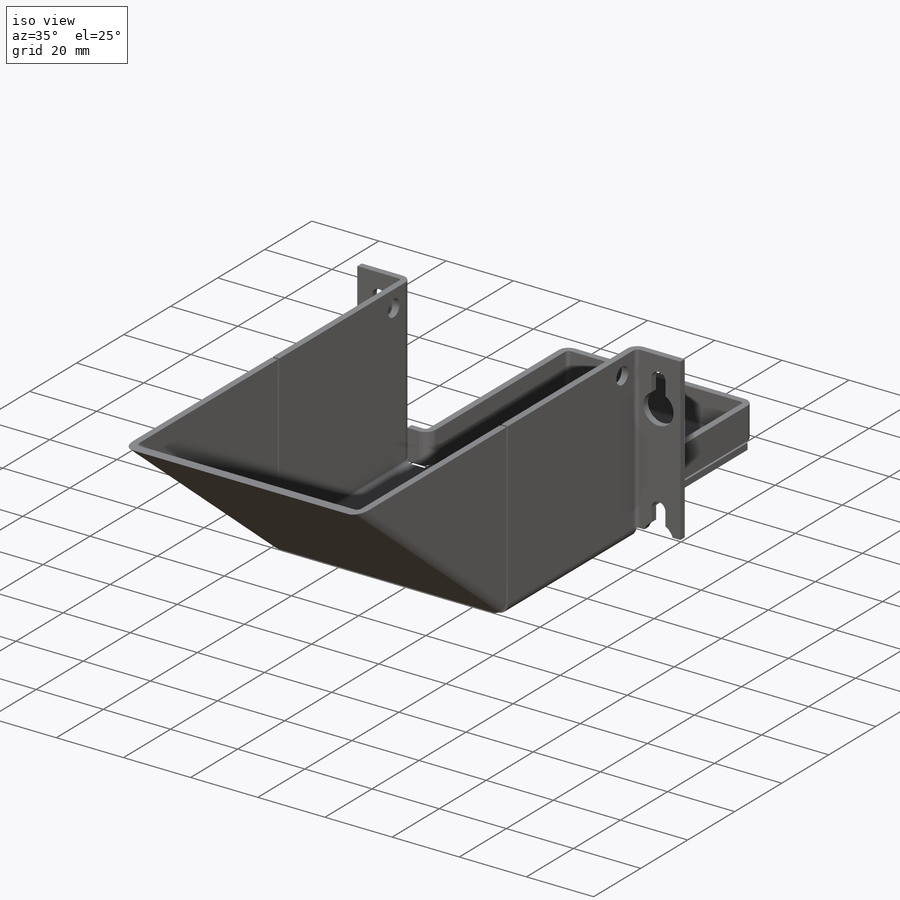
[diagram: iso view]
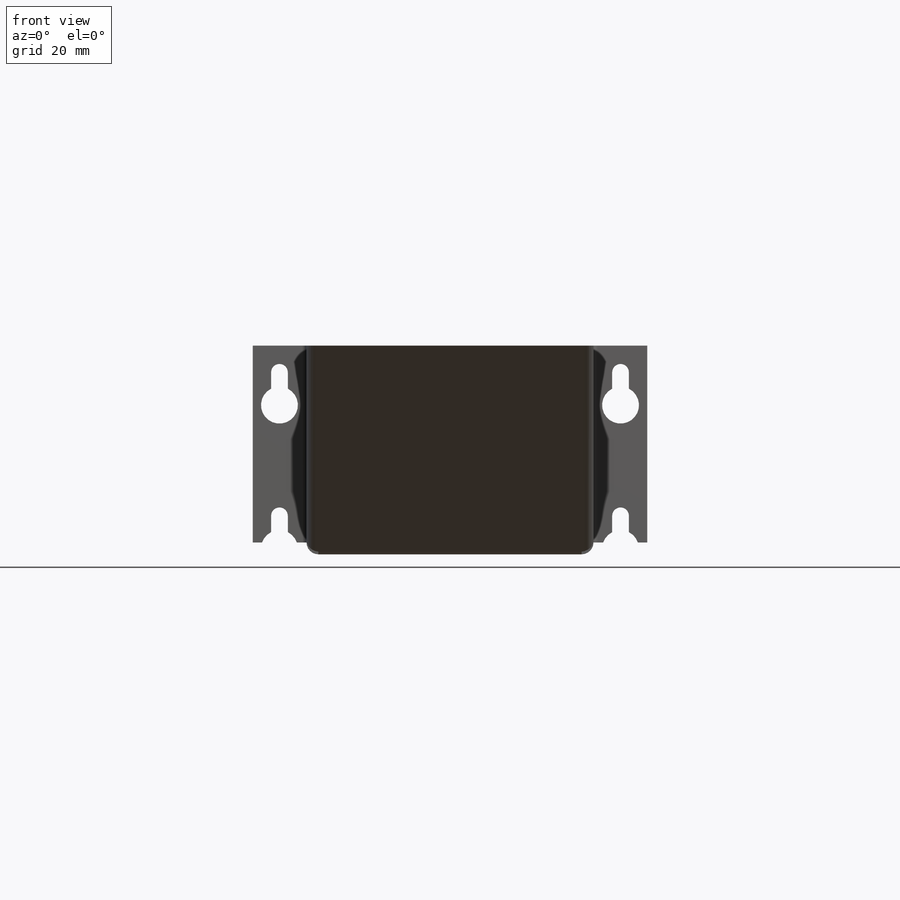
[diagram: front view]
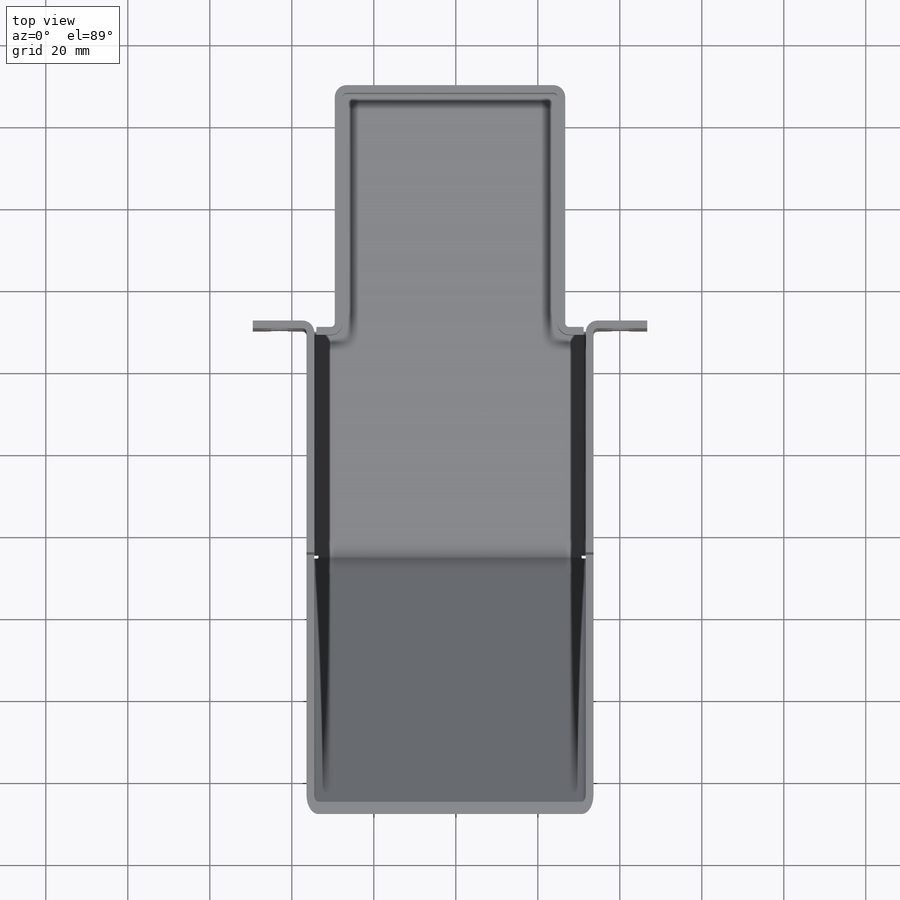
[diagram: top view]
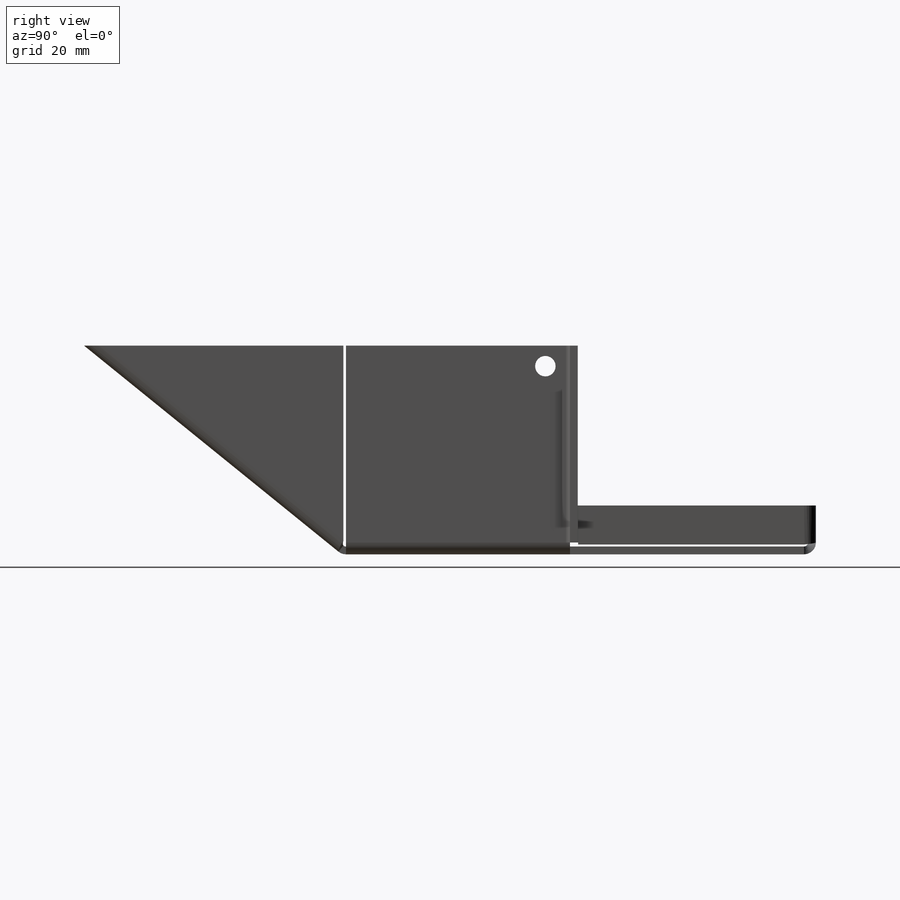
[diagram: right view]
SOLIDWORKS PART (.sldprt)
format: sldprt  version: not decoded by parser v0  size: 1,022,464 bytes
history: native  units: mm
features: sketch x47, sheet_metal_op x26, cut_extrude x4, material x1 + 14 further entries (+13 scaffold rows collapsed; 14 parser-record rows omitted)
feature tree (119):
  scaffold x13  (default folders/planes/origin — collapsed)
  material  "Material <not specified>"
  sketch  "Sketch1"  dims[c1.D1=70.0mm c1.D2=55.0mm c2.D1=1.27mm c2.D2=0.5 c2.D3=0.0mm c2.D6=500.0mm]
  sheet_metal_op  "Base-Flange1"
  sketch  "Sketch8"  dims[c1.D1=70.0mm c2.D1=1.0mm c2.D4=39.0deg c2.D5=1.0 c2.D8=~0.94869mm c2.D9=~0.94869mm c3.D1=1.27mm c3.D2=500.0mm c3.D3=0.0mm c3.D6=10.0mm c3.D7=~137.33476mm c3.Edge-Flange5=0.0]
  sketch  "Sketch36"  dims[D1=49.0mm]
  sketch  "Sketch37"  dims[D1=49.0mm]
  sketch  "Sketch38"
  sketch  "Sketch41"
  sheet_metal_op  "EdgeBend7"
  sheet_metal_op  "EdgeBend8"
  sheet_metal_op  "EdgeBend9"
  sheet_metal_op  "EdgeBend11"
  sketch  "Sketch42"
  cut_extrude  "Cut-Extrude1"  Depth=0 Edge-Flange6=0
  sketch  "Sketch47"
  sketch  "Sketch48"
  sheet_metal_op  "EdgeBend12"
  sheet_metal_op  "EdgeBend13"
  sketch  "Sketch51"  dims[c1.D1=4.08mm c1.D2=4.0mm c1.D4=4.08mm c2.D2=8.0mm c2.D3=6.5mm c3.D2=35.0mm c3.D4=~83.20524mm]
  cut_extrude  "Cut-Extrude2"  Depth=10mm
  sketch  "Sketch52"  dims[D1=5.0mm D2=5.0mm D3=5.0mm]
  cut_extrude  "Cut-Extrude3"  Depth=0 Edge-Flange7=0
  sketch  "Sketch55"  dims[D1=4.0mm D2=4.0mm]
  sheet_metal_op  "EdgeBend14"  Edge-Flange8=0
  sketch  "Sketch60"
  sketch  "Sketch61"
  sheet_metal_op  "EdgeBend15"
  sheet_metal_op  "EdgeBend16"  Edge-Flange9=0
  sketch  "Sketch70"
  sketch  "Sketch71"
  sheet_metal_op  "EdgeBend17"
  sheet_metal_op  "EdgeBend18"
  sketch  "Sketch72"  dims[c1.D1=9.0mm c1.D3=~8.80168mm c1.D2=8.0mm c2.D3=8.0mm]
  cut_extrude  "Cut-Extrude4"  Depth=10mm
  sketch  "Bend-Lines1"
  sketch  "Bounding-Box1"
  sheet_metal_op  "Sheet-Metal1"
  "Flat-Pattern1"
  sketch  "Bend-Lines2"
  sketch  "Bounding-Box2"
  parser-record x14  (decoder bookkeeping rows leaked as tree rows — omitted from the tree; the rows remain in map.json)
  sheet_metal_op  "Sheet-Metal2"
  "Flat-Pattern1"
  sketch  "Bend-Lines2"
  sketch  "Bounding-Box2"
  sheet_metal_op  "Sheet-Metal6"
  "Flat-Pattern1"
  sketch  "Bend-Lines2"
  sketch  "Bounding-Box2"
  sheet_metal_op  "Sheet-Metal7"
  "Flat-Pattern1"
  sketch  "Bend-Lines2"
  sketch  "Bounding-Box2"
  sheet_metal_op  "Sheet-Metal8"
  "Flat-Pattern1"
  sketch  "Bend-Lines2"
  sketch  "Bounding-Box2"
  sheet_metal_op  "Sheet-Metal9"
  "Flat-Pattern9"
  sketch  "Bend-Lines3"
  sketch  "Bounding-Box3"
  sheet_metal_op  "Sheet-Metal10"
  "Flat-Pattern10"
  sketch  "Bend-Lines4"
  sketch  "Bounding-Box4"
  sheet_metal_op  "Sheet-Metal11"
  "Flat-Pattern11"
  sketch  "Bend-Lines5"
  sketch  "Bounding-Box5"
  sheet_metal_op  "Sheet-Metal12"
  "Flat-Pattern1"
  sketch  "Bend-Lines2"
  sketch  "Bounding-Box2"
  sheet_metal_op  "Sheet-Metal13"
  "Flat-Pattern1"
  sketch  "Bend-Lines2"
  sketch  "Bounding-Box2"
  sheet_metal_op  "Sheet-Metal25"
  "Flat-Pattern1"
  sketch  "Bend-Lines2"
  sketch  "Bounding-Box2"
  sheet_metal_op  "Sheet-Metal26"
  "Flat-Pattern1"
  sketch  "Bend-Lines2"
  sketch  "Bounding-Box2"
  sheet_metal_op  "Sheet-Metal27"
  "Flat-Pattern1"
  sketch  "Bend-Lines2"
  sketch  "Bounding-Box2"
  sheet_metal_op  "Sheet-Metal28"
  "Flat-Pattern1"
  sketch  "Bend-Lines2"
  sketch  "Bounding-Box2"
decode coverage: 14 of 77 modeling features carry decoded parameters; 14 rows unclassified (native names shown)
note: ~ marks probable driven/reference dimensions
note: suppression state not decoded; provenance and decode notes live in map.json
